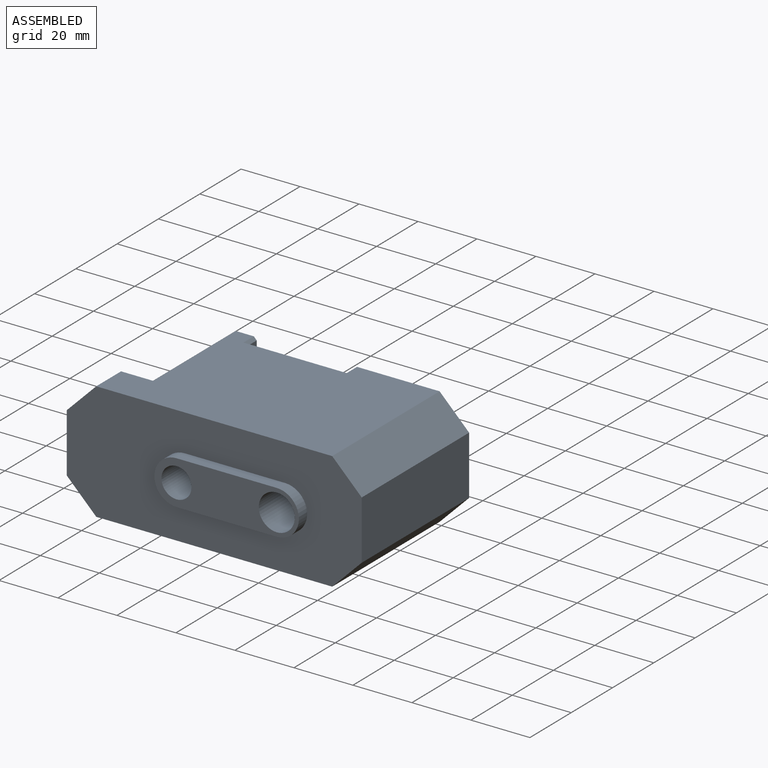
[diagram: assembled view]
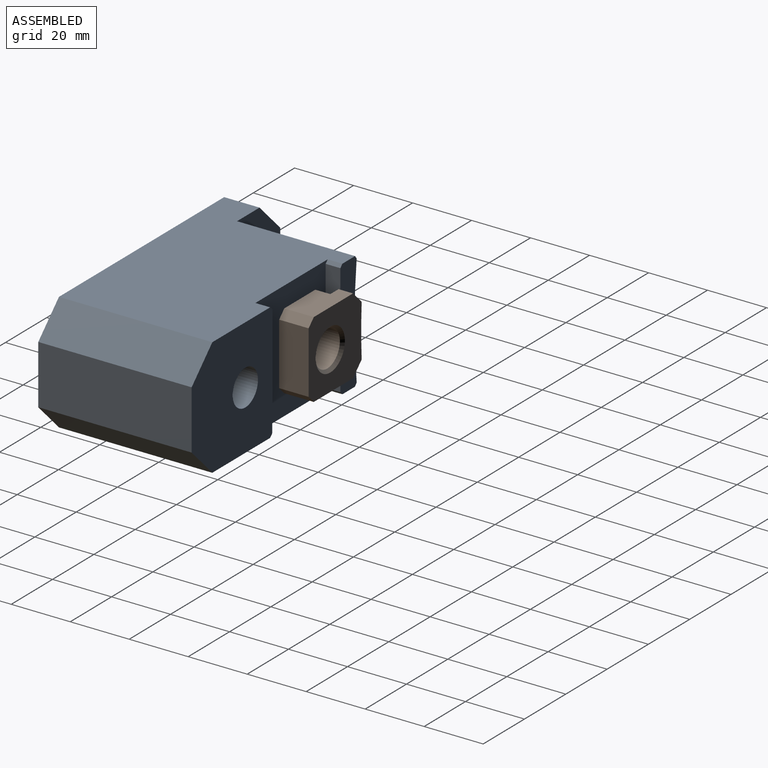
[diagram: assembled view, second angle]
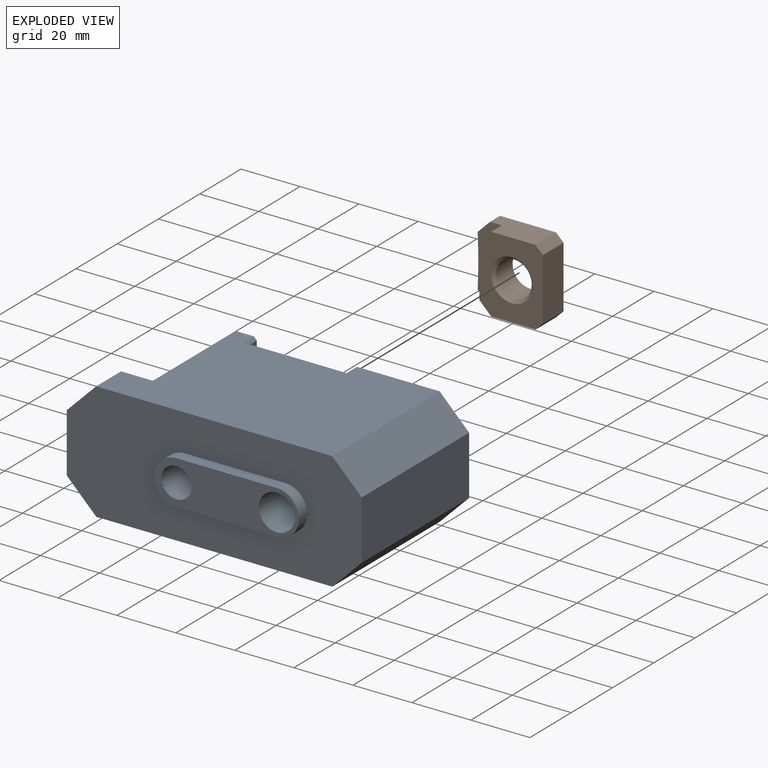
[diagram: exploded view]
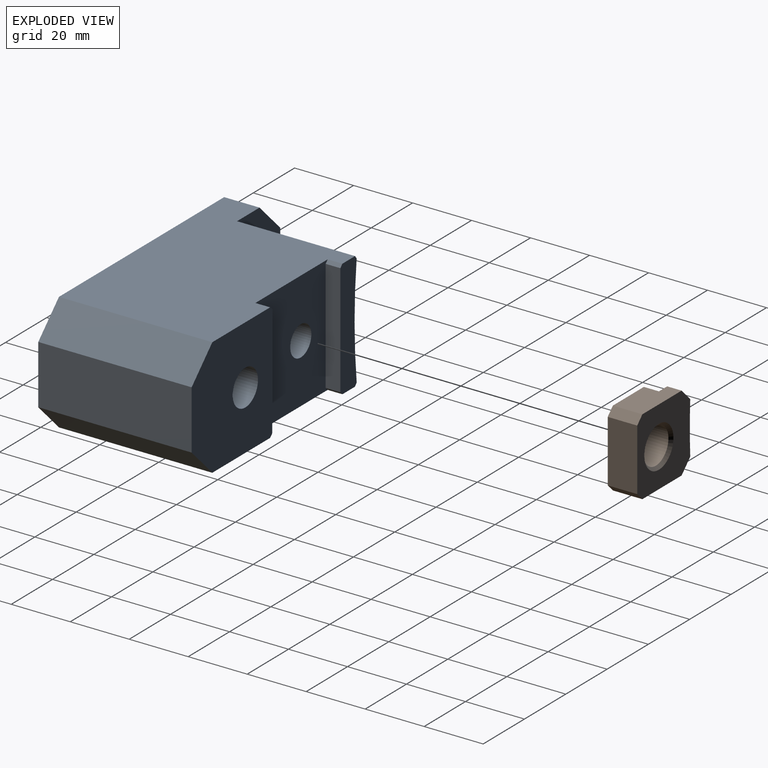
[diagram: exploded view, second angle]
ASSEMBLY  parts=2 mates=2
PART A: 33 faces, bbox 100x56x40 mm
  f0: plane 100x40mm, normal (0,-1,0), area 3113.3mm2, adj f1,f2,f10,f11,f12,f13,f14,f15
  f1: plane 20x12mm, normal (-1,0,0), area 240mm2, adj f0,f9,f23,f24
  f2: plane 52x20mm, normal (1,0,0), area 1040mm2, adj f0,f3,f21,f22
  f3: plane 40x39mm, normal (0,1,0), area 1342.1mm2, adj f2,f4,f10,f11,f17,f21,f22,f29
  f4: plane 38x5mm, normal (-1,0,0), area 190mm2, adj f3,f5,f29,f30
  f5: plane 40x35mm, normal (0,1,0), area 1240.3mm2, adj f4,f6,f10,f11,f20,f27,f28,f29
  f6: plane 38x5mm, normal (1,0,0), area 190mm2, adj f5,f7,f27,f28
  f7: plane 40x7.9mm, normal (0,1,0), area 288mm2, adj f6,f10,f11,f19,f25,f26,f27,f28
  f8: plane 37.75x20mm, normal (-1,0,0), area 755mm2, adj f9,f18,f25,f32
  f9: plane 40x21mm, normal (0,1,0), area 701.1mm2, adj f1,f8,f10,f11,f23,f24,f25,f32
  f10: plane 80x52mm, normal (0,0,1), area 3548.8mm2, adj f0,f3,f5,f7,f9,f22,f24,f26
  f11: plane 80x52mm, normal (0,0,-1), area 3545mm2, adj f0,f3,f5,f7,f9,f21,f23,f25
  f12: cylinder r=7.5mm len=15mm, axis (0,1,0), area 94.2mm2, adj f0,f13,f15,f16
  f13: plane 34x4mm, normal (0,0,-1), area 136mm2, adj f0,f12,f14,f16
  f14: cylinder r=7.5mm len=15mm, axis (0,1,0), area 94.2mm2, adj f0,f13,f15,f16
  f15: plane 34x4mm, normal (0,0,1), area 136mm2, adj f0,f12,f14,f16
  f16: plane 49x15mm, normal (0,-1,0), area 488.1mm2, adj f12,f13,f14,f15,f17,f20
  f17: cylinder r=6.1mm len=56mm, axis (0,-1,0), area 2146.3mm2, adj f3,f16
  f18: plane 38.02x1.13mm, normal (0,1,0), area 30mm2, adj f8,f19,f25,f32
  f19: cylinder r=178mm len=38.1mm, axis (0,1,0), area 763.5mm2, adj f7,f18,f25,f26,f31
  f20: cylinder r=5.1mm len=51mm, axis (0,1,0), area 1634.3mm2, adj f5,f16
  f21: plane 52x10mm, normal (0.71,0,-0.71), area 735.4mm2, adj f0,f2,f3,f11
  f22: plane 52x10mm, normal (0.71,0,0.71), area 735.4mm2, adj f0,f2,f3,f10
  f23: plane 12x10mm, normal (-0.71,0,-0.71), area 169.7mm2, adj f0,f1,f9,f11
  f24: plane 12x10mm, normal (-0.71,0,0.71), area 169.7mm2, adj f0,f1,f9,f10
  f25: plane 40x1mm, normal (-0.71,0,-0.71), area 53.8mm2, adj f7,f8,f9,f11,f18,f19
  f26: plane 20x1mm, normal (-0.78,0,0.62), area 25.5mm2, adj f7,f10,f19,f31
  f27: plane 5x1mm, normal (0.71,0,-0.71), area 7.1mm2, adj f5,f6,f7,f11
  f28: plane 5x1mm, normal (0.71,0,0.71), area 7.1mm2, adj f5,f6,f7,f10
  f29: plane 5x1mm, normal (-0.71,0,-0.71), area 7.1mm2, adj f3,f4,f5,f11
  f30: plane 5x1mm, normal (-0.71,0,0.71), area 7.1mm2, adj f3,f4,f5,f10
  f31: plane 1.08x0.79mm, normal (0,-1,0), area 0mm2, adj f19,f26,f32
  f32: plane 20x1.25mm, normal (-0.81,0,0.59), area 30.8mm2, adj f8,f9,f10,f18,f31
PART B: 17 faces, bbox 25.7x10x26 mm
  f0: plane 26x25.67mm, normal (0,1,0), area 485.1mm2, adj f2,f3,f4,f5,f6,f7,f12,f15
  f1: plane 26x21.5mm, normal (0,-1,0), area 380.6mm2, adj f3,f4,f5,f6,f9,f11,f13,f14
  f2: plane 4.9x4.17mm, normal (-0.71,0,0.71), area 28.9mm2, adj f0,f3,f10,f16
  f3: plane 19x10mm, normal (0,0,1), area 169.6mm2, adj f0,f1,f2,f4,f10,f13
  f4: plane 10x2.5mm, normal (0.71,0,0.71), area 35.4mm2, adj f0,f1,f3,f15
  f5: plane 10x2.5mm, normal (0.71,0,-0.71), area 35.4mm2, adj f0,f1,f6,f15
  f6: plane 19x10mm, normal (0,0,-1), area 169.6mm2, adj f0,f1,f5,f7,f10,f14
  f7: plane 4.9x4.17mm, normal (-0.71,0,-0.71), area 28.9mm2, adj f0,f6,f10,f16
  f8: cylinder r=6.05mm len=12.1mm, axis (0,-1,0), area 304.1mm2, adj f11,f12
  f9: plane 18x5.1mm, normal (-1,0,0), area 91.8mm2, adj f1,f10,f13,f14
  f10: plane 26x8.17mm, normal (0,-1,0), area 104.5mm2, adj f2,f3,f6,f7,f9,f13,f14,f16
  f11: cone r=7.05mm half-angle=45deg, axis (0,-1,0), area 58.2mm2, adj f1,f8
  f12: cone r=6.05mm half-angle=45deg, axis (0,1,0), area 58.2mm2, adj f0,f8
  f13: plane 5.1x4mm, normal (-0.71,0,0.71), area 28.8mm2, adj f1,f3,f9,f10
  f14: plane 5.1x4mm, normal (-0.71,0,-0.71), area 28.8mm2, adj f1,f6,f9,f10
  f15: plane 21x10mm, normal (1,0,0), area 210mm2, adj f0,f1,f4,f5
  f16: cylinder r=182mm len=17.66mm, axis (0,1,0), area 86.6mm2, adj f0,f2,f7,f10
PLACE A t=(-49.56,-13.53,-21.32)mm
PLACE B t=(-20.72,33.47,15.76)mm
MATE planar B.f1 <-> A.f5  axis (0,-1,0) through (-9.68,33.47,-1.32)mm
MATE cylindrical B.f8 <-> A.f12  axis (0,-1,0) through (-9.56,38.47,-1.32)mm
